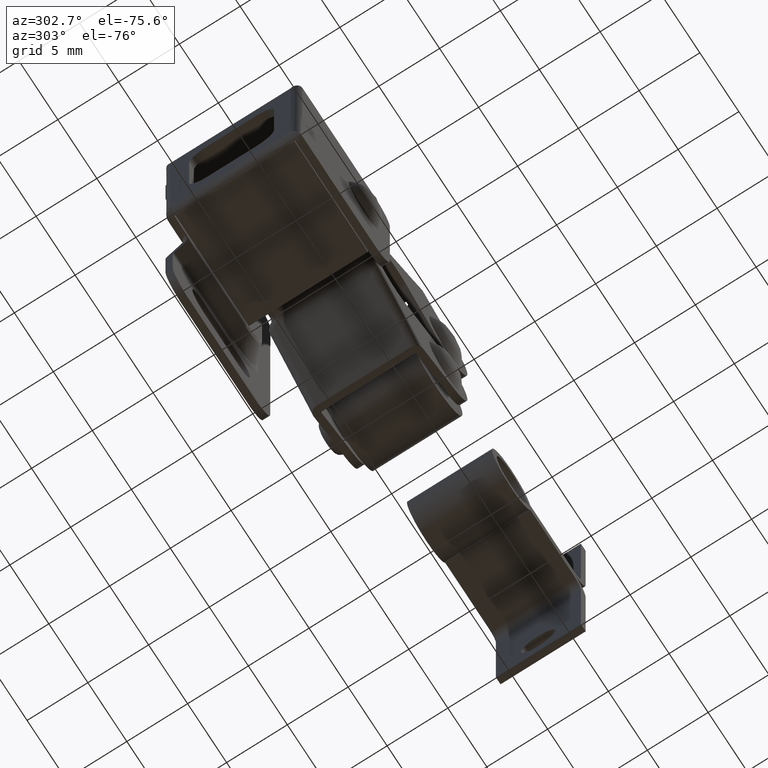
[diagram: clean part render]
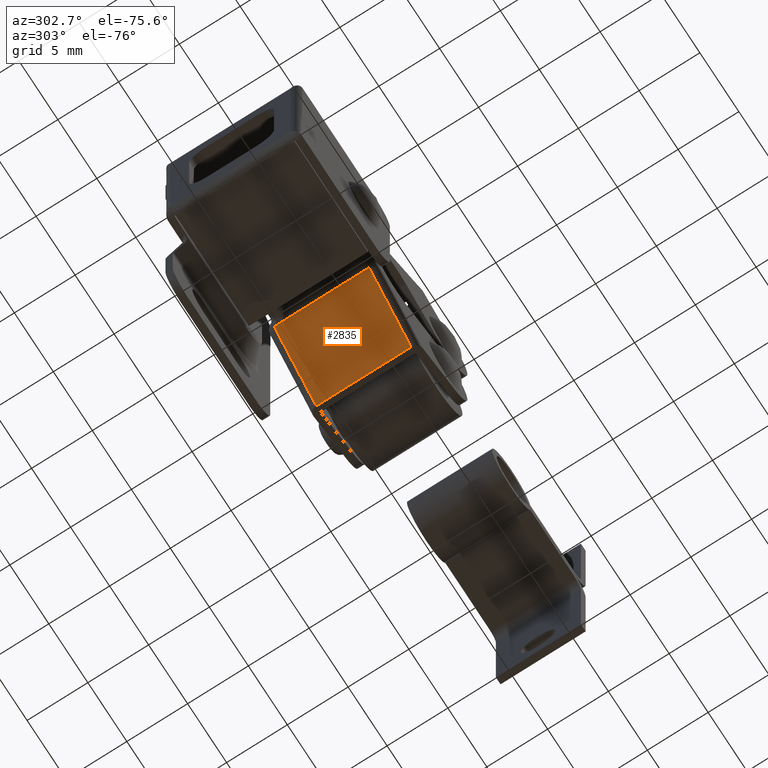
[diagram: same view with one face highlighted and labeled with its STEP entity id]
A machine part, auxiliary view. The second image highlights one B-rep face of the part: STEP entity #2835.
In plain terms, the highlighted face is a freeform B-spline surface patch.
Its self-contained STEP definition (entity closure, byte-faithful):
#1539=CARTESIAN_POINT('',(2.907969559453265,-10.900000000000000,-6.156940229454840));
#1540=VERTEX_POINT('',#1539);
#1721=CARTESIAN_POINT('',(8.300001494121791,-10.900000000000000,-1.749988509609305));
#1722=VERTEX_POINT('',#1721);
#1736=CARTESIAN_POINT('',(2.907969559453265,-10.900000000000000,-6.156940229454840));
#1737=CARTESIAN_POINT('',(8.300001494121791,-10.900000000000000,-1.749988509609305));
#1738=QUASI_UNIFORM_CURVE('',1,(#1736,#1737),.UNSPECIFIED.,.F.,.U.);
#1739=EDGE_CURVE('',#1540,#1722,#1738,.T.);
#1760=CARTESIAN_POINT('',(8.300001494121791,-3.100000000000000,-1.749988509609305));
#1761=VERTEX_POINT('',#1760);
#1782=CARTESIAN_POINT('',(2.907969559453265,-3.100000000000000,-6.156940229454840));
#1783=VERTEX_POINT('',#1782);
#1797=CARTESIAN_POINT('',(8.300001494121791,-3.100000000000000,-1.749988509609305));
#1798=CARTESIAN_POINT('',(2.907969559453265,-3.100000000000000,-6.156940229454840));
#1799=QUASI_UNIFORM_CURVE('',1,(#1797,#1798),.UNSPECIFIED.,.F.,.U.);
#1800=EDGE_CURVE('',#1761,#1783,#1799,.T.);
#2816=CARTESIAN_POINT('',(2.638637391565349,-11.289609618777989,-6.377067609052110));
#2817=CARTESIAN_POINT('',(8.569333228133004,-11.289609618777989,-1.529861484623004));
#2818=CARTESIAN_POINT('',(2.638637391565349,-2.710389823322534,-6.377067609052110));
#2819=CARTESIAN_POINT('',(8.569333228133004,-2.710389823322534,-1.529861484623004));
#2820=B_SPLINE_SURFACE_WITH_KNOTS('',1,1,((#2816,#2818),(#2817,#2819)),.UNSPECIFIED.,.F.,.F.,.U.,(2,2),(2,2),(0.0,7.659540476985807),(0.0,8.579219795455458),.UNSPECIFIED.);
#2821=CARTESIAN_POINT('',(8.300001494121791,-3.100000000000000,-1.749988509609305));
#2822=CARTESIAN_POINT('',(8.300001494121791,-10.900000000000000,-1.749988509609305));
#2823=QUASI_UNIFORM_CURVE('',1,(#2821,#2822),.UNSPECIFIED.,.F.,.U.);
#2824=EDGE_CURVE('',#1761,#1722,#2823,.T.);
#2825=ORIENTED_EDGE('',*,*,#2824,.F.);
#2826=ORIENTED_EDGE('',*,*,#1800,.T.);
#2827=CARTESIAN_POINT('',(2.907969559453265,-3.100000000000000,-6.156940229454840));
#2828=CARTESIAN_POINT('',(2.907969559453265,-10.900000000000000,-6.156940229454840));
#2829=QUASI_UNIFORM_CURVE('',1,(#2827,#2828),.UNSPECIFIED.,.F.,.U.);
#2830=EDGE_CURVE('',#1783,#1540,#2829,.T.);
#2831=ORIENTED_EDGE('',*,*,#2830,.T.);
#2832=ORIENTED_EDGE('',*,*,#1739,.T.);
#2833=EDGE_LOOP('',(#2825,#2826,#2831,#2832));
#2834=FACE_OUTER_BOUND('',#2833,.T.);
#2835=ADVANCED_FACE('',(#2834),#2820,.T.);